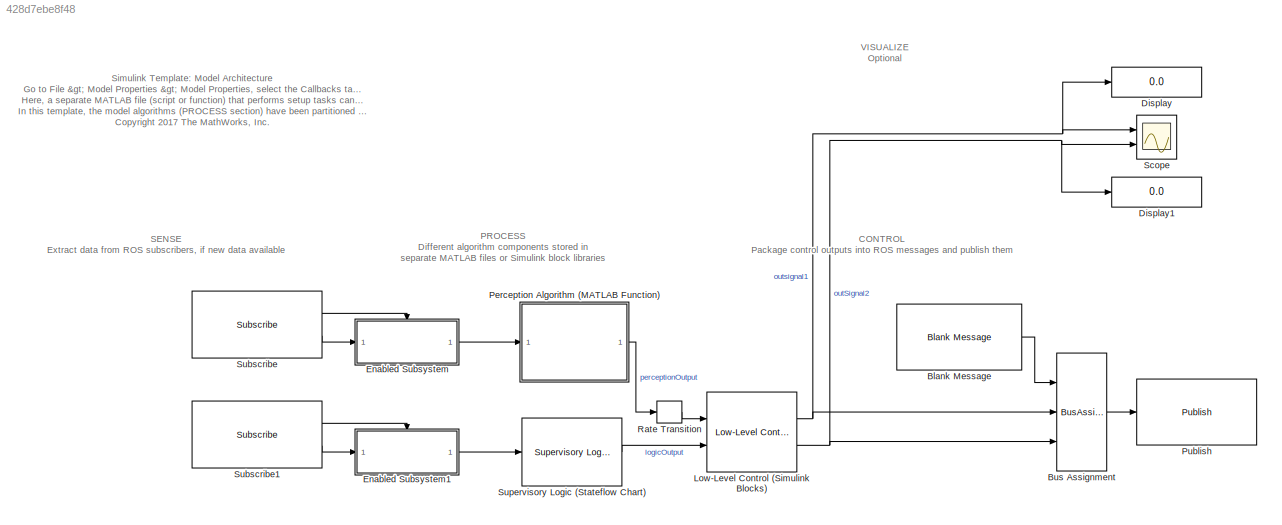
MODEL slx_428d7ebe8f48
KIND model
CONFIG AbsTol = auto
CONFIG EnableMultiTasking = off
CONFIG FixedStep = auto
CONFIG MaxStep = auto
CONFIG MinStep = auto
CONFIG PreLoadFcn = myPreloadScript;
CONFIG RelTol = 1e-3
CONFIG SampleTimeConstraint = Unconstrained
CONFIG Solver = FixedStepAuto
CONFIG SolverName = FixedStepAuto
CONFIG StartTime = 0.0
CONFIG StopTime = inf
BLOCK [Reference] Blank Message  REF=robotlib/Blank Message
  Ports = [0, 1]
  SourceBlock = robotlib/Blank Message
  SourceLibraryInfo = This block requires Robotics System Toolbox
  SourceProductBaseCode = RO
  SourceProductName = Robotics System Toolbox
  SourceType = ROS Blank Message
BLOCK [BusAssignment] Bus Assignment
  AssignedSignals = X,Y
  Ports = [3, 1]
BLOCK [Display] Display
  Decimation = 1
  Ports = [1]
BLOCK [Display] Display1
  Decimation = 1
  Ports = [1]
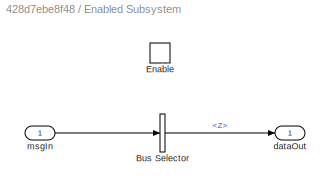
BLOCK [SubSystem] Enabled Subsystem
  Ports = [1, 1, 1]
  RequestExecContextInheritance = off
  TreatAsAtomicUnit = on
  Variant = off
BLOCK [BusSelector] Enabled Subsystem/Bus Selector
  OutputAsBus = off
  OutputSignals = Z
  Ports = [1, 1]
BLOCK [EnablePort] Enabled Subsystem/Enable
  Ports = []
BLOCK [Outport] Enabled Subsystem/dataOut
  IconDisplay = Port number
BLOCK [Inport] Enabled Subsystem/msgIn
  IconDisplay = Port number
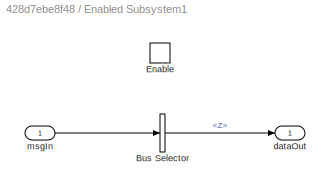
BLOCK [SubSystem] Enabled Subsystem1
  Ports = [1, 1, 1]
  RequestExecContextInheritance = off
  TreatAsAtomicUnit = on
  Variant = off
BLOCK [BusSelector] Enabled Subsystem1/Bus Selector
  OutputAsBus = off
  OutputSignals = Z
  Ports = [1, 1]
BLOCK [EnablePort] Enabled Subsystem1/Enable
  Ports = []
BLOCK [Outport] Enabled Subsystem1/dataOut
  IconDisplay = Port number
BLOCK [Inport] Enabled Subsystem1/msgIn
  IconDisplay = Port number
BLOCK [Reference] Low-Level Control (Simulink Blocks)  REF=myAlgorithmLib/Low-Level Control
  Ports = [2, 2]
  SourceBlock = myAlgorithmLib/Low-Level Control
  SourceType = Low-Level Control Template
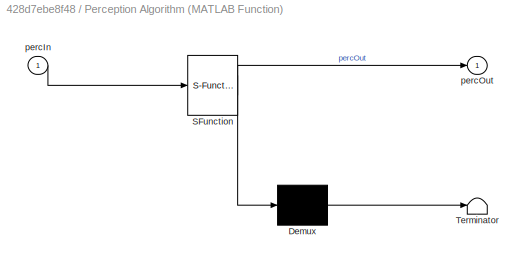
BLOCK [SubSystem] Perception Algorithm (MATLAB Function)
  ErrorFcn = Stateflow.Translate.translate
  PermitHierarchicalResolution = ExplicitOnly
  Ports = [1, 1]
  RequestExecContextInheritance = off
  SFBlockType = MATLAB Function
  TreatAsAtomicUnit = on
  Variant = off
BLOCK [Demux] Perception Algorithm (MATLAB Function)/ Demux 
  Outputs = 1
  Ports = [1, 1]
BLOCK [S-Function] Perception Algorithm (MATLAB Function)/ SFunction 
  EnableBusSupport = on
  FunctionName = sf_sfun
  Parameters = perceptionParam
  PortCounts = [1 2]
  Ports = [1, 2]
  SFcnIsStateOwnerBlock = off
  SFunctionDeploymentMode = off
  Tag = Stateflow S-Function mdlArchTemplate 2
BLOCK [Terminator] Perception Algorithm (MATLAB Function)/ Terminator 
BLOCK [Inport] Perception Algorithm (MATLAB Function)/percIn
  IconDisplay = Port number
BLOCK [Outport] Perception Algorithm (MATLAB Function)/percOut
  IconDisplay = Port number
BLOCK [Reference] Publish  REF=robotlib/Publish
  Ports = [1]
  SourceBlock = robotlib/Publish
  SourceLibraryInfo = This block requires Robotics System Toolbox
  SourceProductBaseCode = RO
  SourceProductName = Robotics System Toolbox
  SourceType = ROS Publish
BLOCK [RateTransition] Rate Transition
BLOCK [Scope] Scope
  NumInputPorts = 2
  Ports = [2]
  ScopeSpecificationString = Simulink.scopes.TimeScopeBlockCfg('CurrentConfiguration', extmgr.ConfigurationSet(extmgr.Configuration('Core','General UI',true),extmgr.Configuration('Core','Source UI',true),extmgr.Configuration('Sources','WiredSimulink',true),extmgr.Configuration('Visuals','Time Domain',true),extmgr.Configuration('Tools','Plot Navigation',true),extmgr.Configuration('Tools','Measurements',true)),'Version','2017b'...<+1ch>
BLOCK [Reference] Subscribe  REF=robotlib/Subscribe
  Ports = [0, 2]
  SourceBlock = robotlib/Subscribe
  SourceLibraryInfo = This block requires Robotics System Toolbox
  SourceProductBaseCode = RO
  SourceProductName = Robotics System Toolbox
  SourceType = ROS Subscribe
BLOCK [Reference] Subscribe1  REF=robotlib/Subscribe
  Ports = [0, 2]
  SourceBlock = robotlib/Subscribe
  SourceLibraryInfo = This block requires Robotics System Toolbox
  SourceProductBaseCode = RO
  SourceProductName = Robotics System Toolbox
  SourceType = ROS Subscribe
BLOCK [Reference] Supervisory Logic (Stateflow Chart)  REF=myAlgorithmLib/Supervisory Logic
  Ports = [1, 1]
  SourceBlock = myAlgorithmLib/Supervisory Logic
  SourceType = SubSystem
ANNOTATION (root): Simulink Template: Model Architecture Go to File > Model Properties > Model Properties , select the Callbacks tab, and go to PreLoadFcn . Here, a separate MATLAB file (script or function) that performs setup tasks can be called when loading the model. In this template, the model algorithms ( PROCESS section) have been partitioned into modular and reusable components. Different components leverage ...<+86ch>
ANNOTATION (root): CONTROL Package control outputs into ROS messages and publish them
ANNOTATION (root): PROCESS Different algorithm components stored in separate MATLAB files or Simulink block libraries
ANNOTATION (root): SENSE Extract data from ROS subscribers, if new data available
ANNOTATION (root): VISUALIZE Optional
LINE Blank Message:1 -> Bus Assignment:1
LINE Bus Assignment:1 -> Publish:1
LINE Enabled Subsystem/Bus Selector:1 -> Enabled Subsystem/dataOut:1
LINE Enabled Subsystem/msgIn:1 -> Enabled Subsystem/Bus Selector:1
LINE Enabled Subsystem1/Bus Selector:1 -> Enabled Subsystem1/dataOut:1
LINE Enabled Subsystem1/msgIn:1 -> Enabled Subsystem1/Bus Selector:1
LINE Enabled Subsystem1:1 -> Supervisory Logic (Stateflow Chart):1
LINE Enabled Subsystem:1 -> Perception Algorithm (MATLAB Function):1
NET Low-Level Control (Simulink Blocks):1 -> Bus Assignment:2, Display:1, Scope:1
NET Low-Level Control (Simulink Blocks):2 -> Bus Assignment:3, Display1:1, Scope:2
LINE Perception Algorithm (MATLAB Function):1 -> Rate Transition:1
LINE Rate Transition:1 -> Low-Level Control (Simulink Blocks):1
LINE Subscribe1:1 -> Enabled Subsystem1:enable
LINE Subscribe1:2 -> Enabled Subsystem1:1
LINE Subscribe:1 -> Enabled Subsystem:enable
LINE Subscribe:2 -> Enabled Subsystem:1
LINE Supervisory Logic (Stateflow Chart):1 -> Low-Level Control (Simulink Blocks):2
note: NET lines group one-source signal fan-out (src -> all destinations, sorted); 1:1 wires keep LINE
CHART Perception Algorithm 
(MATLAB Function) states=1 transitions=1
  STATE_LABEL 'eML_blk_kernel()'
  STATE_LABEL 'SCRIPT:\nfunction percOut = perceptionWrapper(percIn, perceptionParam)\n% Wrapper function that calls a separate MATLAB file, myPerfectionFcn.m\n\n% The input perceptionParam has been defined as a parameter, which\n% references the source workspace. To see data definitions for this\n% function, click "Edit Data" in the "Editor" tab of the MATLAB toolstrip.\n\npercOut = myPerceptionFcn(percIn,perceptionPar...<+5ch>'
